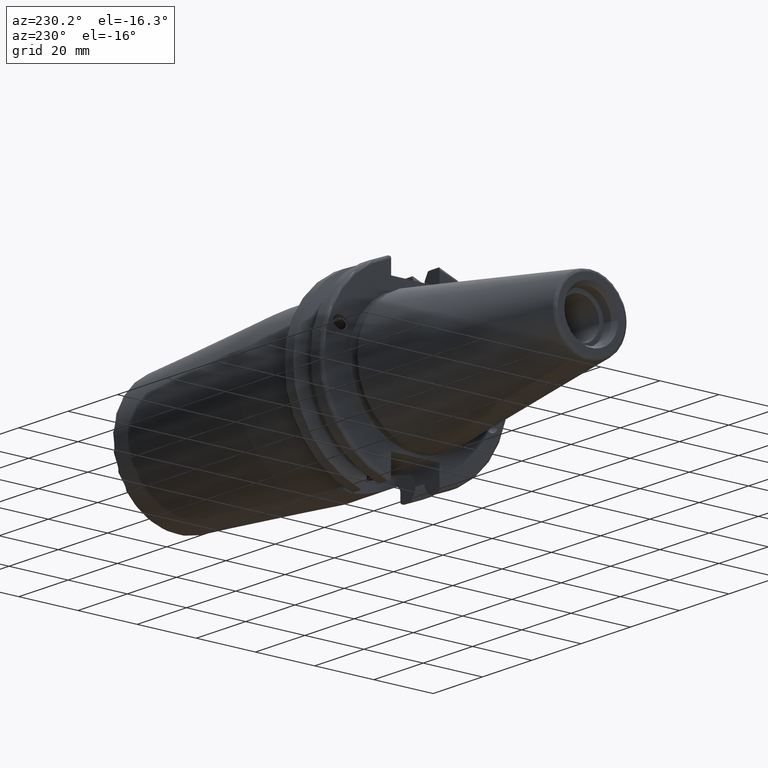
[diagram: clean part render]
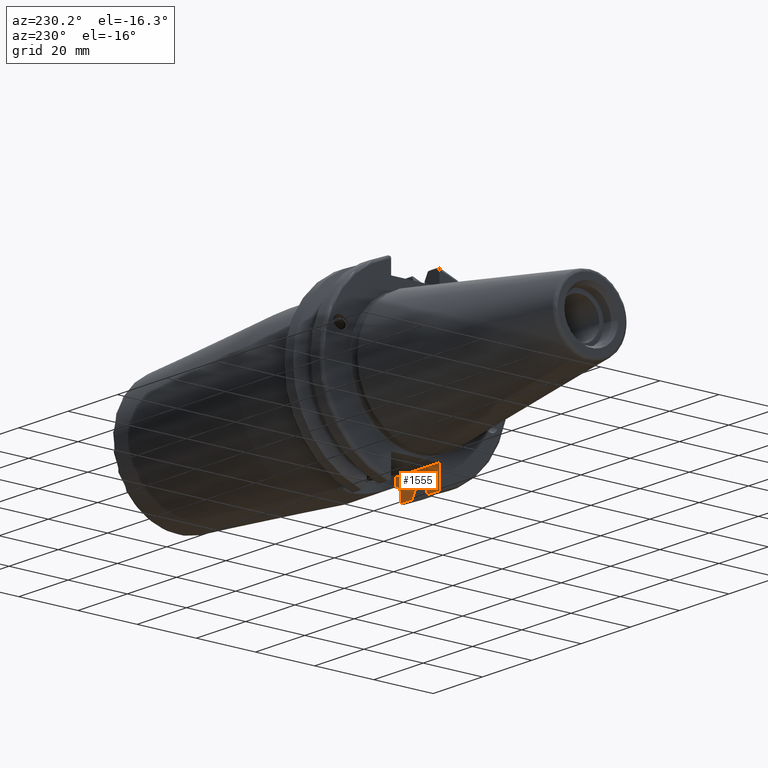
[diagram: same view with one face highlighted and labeled with its STEP entity id]
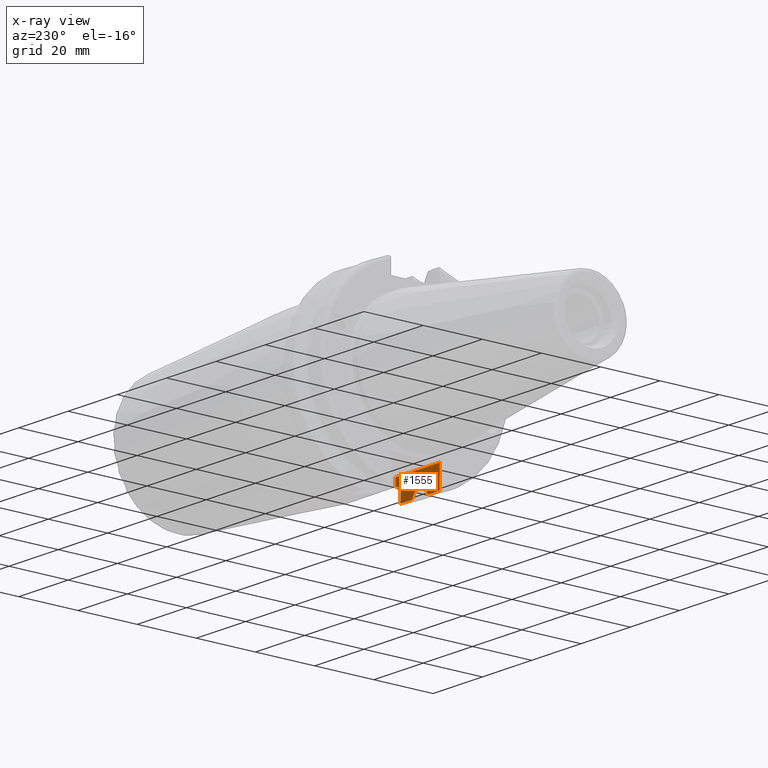
[diagram: x-ray of the same camera — body ghosted, the highlighted face saturated]
A machine part, auxiliary view. The second image highlights one B-rep face of the part: STEP entity #1555.
The next image is the same camera in x-ray: the body ghosted, the highlighted face saturated — about 0% of this face is hidden behind the body in this view.
In plain terms, the highlighted planar face has unit normal (0, -1, 0).
Its self-contained STEP definition (entity closure, byte-faithful):
#15=(
BOUNDED_CURVE()
B_SPLINE_CURVE(2,(#2634,#2635,#2636),.UNSPECIFIED.,.F.,.F.)
B_SPLINE_CURVE_WITH_KNOTS((3,3),(0.,0.276549142795512),.UNSPECIFIED.)
CURVE()
GEOMETRIC_REPRESENTATION_ITEM()
RATIONAL_B_SPLINE_CURVE((1.,1.00095203904184,1.00031614445102))
REPRESENTATION_ITEM('')
);
#26=(
BOUNDED_CURVE()
B_SPLINE_CURVE(2,(#2963,#2964,#2965),.UNSPECIFIED.,.F.,.F.)
B_SPLINE_CURVE_WITH_KNOTS((3,3),(0.0550586467392022,0.33160778953585),
 .UNSPECIFIED.)
CURVE()
GEOMETRIC_REPRESENTATION_ITEM()
RATIONAL_B_SPLINE_CURVE((1.00031614445148,1.00095203904325,1.))
REPRESENTATION_ITEM('')
);
#81=PLANE('',#1739);
#173=FACE_OUTER_BOUND('',#272,.T.);
#272=EDGE_LOOP('',(#1301,#1302,#1303,#1304,#1305,#1306,#1307,#1308,#1309,
#1310,#1311,#1312,#1313,#1314,#1315,#1316));
#388=LINE('',#2288,#474);
#390=LINE('',#2348,#476);
#401=LINE('',#2514,#487);
#413=LINE('',#2655,#499);
#414=LINE('',#2659,#500);
#415=LINE('',#2663,#501);
#435=LINE('',#2840,#521);
#449=LINE('',#2961,#535);
#450=LINE('',#2967,#536);
#451=LINE('',#2974,#537);
#474=VECTOR('',#1808,10.);
#476=VECTOR('',#1820,10.);
#487=VECTOR('',#1891,10.);
#499=VECTOR('',#1961,10.);
#500=VECTOR('',#1966,10.);
#501=VECTOR('',#1971,10.);
#521=VECTOR('',#2079,10.);
#535=VECTOR('',#2115,10.);
#536=VECTOR('',#2116,10.);
#537=VECTOR('',#2117,10.);
#563=B_SPLINE_CURVE_WITH_KNOTS('',3,(#2332,#2333,#2334,#2335,#2336,#2337,
#2338,#2339,#2340,#2341),.UNSPECIFIED.,.F.,.F.,(4,2,2,2,4),(0.30235413598056,
0.380849955756906,0.457822572712345,0.532639529571725,0.599148331142492),
 .UNSPECIFIED.);
#564=B_SPLINE_CURVE_WITH_KNOTS('',3,(#2342,#2343,#2344,#2345),
 .UNSPECIFIED.,.F.,.F.,(4,4),(0.599148331142492,0.605555811664728),
 .UNSPECIFIED.);
#588=B_SPLINE_CURVE_WITH_KNOTS('',3,(#2907,#2908,#2909,#2910,#2911,#2912),
 .UNSPECIFIED.,.F.,.F.,(4,2,4),(0.097738363091569,0.112311108149119,0.150804350305566),
 .UNSPECIFIED.);
#593=B_SPLINE_CURVE_WITH_KNOTS('',3,(#2968,#2969,#2970,#2971,#2972,#2973),
 .UNSPECIFIED.,.F.,.F.,(4,2,4),(0.452741154494498,0.491581665024872,0.505824174364157),
 .UNSPECIFIED.);
#607=VERTEX_POINT('',#2285);
#608=VERTEX_POINT('',#2287);
#613=VERTEX_POINT('',#2329);
#614=VERTEX_POINT('',#2331);
#615=VERTEX_POINT('',#2347);
#640=VERTEX_POINT('',#2512);
#663=VERTEX_POINT('',#2631);
#664=VERTEX_POINT('',#2633);
#669=VERTEX_POINT('',#2653);
#670=VERTEX_POINT('',#2657);
#671=VERTEX_POINT('',#2661);
#712=VERTEX_POINT('',#2837);
#713=VERTEX_POINT('',#2839);
#724=VERTEX_POINT('',#2906);
#733=VERTEX_POINT('',#2962);
#734=VERTEX_POINT('',#2966);
#766=EDGE_CURVE('',#607,#608,#388,.T.);
#774=EDGE_CURVE('',#614,#613,#563,.F.);
#775=EDGE_CURVE('',#607,#614,#564,.F.);
#776=EDGE_CURVE('',#615,#608,#390,.T.);
#812=EDGE_CURVE('',#640,#613,#401,.T.);
#844=EDGE_CURVE('',#663,#664,#15,.T.);
#851=EDGE_CURVE('',#669,#663,#413,.T.);
#853=EDGE_CURVE('',#670,#669,#414,.T.);
#855=EDGE_CURVE('',#671,#670,#415,.T.);
#911=EDGE_CURVE('',#712,#713,#435,.T.);
#929=EDGE_CURVE('',#724,#640,#588,.T.);
#942=EDGE_CURVE('',#664,#724,#449,.T.);
#943=EDGE_CURVE('',#733,#671,#26,.T.);
#944=EDGE_CURVE('',#734,#733,#450,.T.);
#945=EDGE_CURVE('',#713,#734,#593,.T.);
#946=EDGE_CURVE('',#615,#712,#451,.T.);
#1301=ORIENTED_EDGE('',*,*,#774,.T.);
#1302=ORIENTED_EDGE('',*,*,#812,.F.);
#1303=ORIENTED_EDGE('',*,*,#929,.F.);
#1304=ORIENTED_EDGE('',*,*,#942,.F.);
#1305=ORIENTED_EDGE('',*,*,#844,.F.);
#1306=ORIENTED_EDGE('',*,*,#851,.F.);
#1307=ORIENTED_EDGE('',*,*,#853,.F.);
#1308=ORIENTED_EDGE('',*,*,#855,.F.);
#1309=ORIENTED_EDGE('',*,*,#943,.F.);
#1310=ORIENTED_EDGE('',*,*,#944,.F.);
#1311=ORIENTED_EDGE('',*,*,#945,.F.);
#1312=ORIENTED_EDGE('',*,*,#911,.F.);
#1313=ORIENTED_EDGE('',*,*,#946,.F.);
#1314=ORIENTED_EDGE('',*,*,#776,.T.);
#1315=ORIENTED_EDGE('',*,*,#766,.F.);
#1316=ORIENTED_EDGE('',*,*,#775,.T.);
#1555=ADVANCED_FACE('',(#173),#81,.F.);
#1739=AXIS2_PLACEMENT_3D('',#2960,#2113,#2114);
#1808=DIRECTION('',(-1.,0.,0.));
#1820=DIRECTION('',(0.,0.,-1.));
#1891=DIRECTION('',(0.,0.,1.));
#1961=DIRECTION('',(0.,0.,-1.));
#1966=DIRECTION('',(1.,0.,0.));
#1971=DIRECTION('',(0.,0.,1.));
#2079=DIRECTION('',(0.,0.,-1.));
#2113=DIRECTION('center_axis',(0.,-1.,0.));
#2114=DIRECTION('ref_axis',(-1.,0.,0.));
#2115=DIRECTION('',(1.,0.,0.));
#2116=DIRECTION('',(1.,0.,0.));
#2117=DIRECTION('',(-1.,-5.61033532938035E-16,0.));
#2285=CARTESIAN_POINT('',(21.05,-8.19,-25.2026566060009));
#2287=CARTESIAN_POINT('',(20.985,-8.18999999999999,-25.2026566060009));
#2288=CARTESIAN_POINT('',(30.9360393436069,-8.19,-25.2026566060009));
#2329=CARTESIAN_POINT('',(19.05,-8.19,-27.2978735435565));
#2331=CARTESIAN_POINT('',(20.985,-8.18999999999999,-25.2037675190955));
#2332=CARTESIAN_POINT('Ctrl Pts',(19.05,-8.19,-27.2978735435565));
#2333=CARTESIAN_POINT('Ctrl Pts',(19.05,-8.19,-27.0362208109687));
#2334=CARTESIAN_POINT('Ctrl Pts',(19.1094531968333,-8.19,-26.7279176858725));
#2335=CARTESIAN_POINT('Ctrl Pts',(19.3031737487845,-8.19,-26.2472590391816));
#2336=CARTESIAN_POINT('Ctrl Pts',(19.4700477206645,-8.19,-25.9885127973065));
#2337=CARTESIAN_POINT('Ctrl Pts',(19.8224629313532,-8.19,-25.6254641098208));
#2338=CARTESIAN_POINT('Ctrl Pts',(20.0683591355164,-8.19,-25.4548877652789));
#2339=CARTESIAN_POINT('Ctrl Pts',(20.501666882114,-8.19,-25.2700465210141));
#2340=CARTESIAN_POINT('Ctrl Pts',(20.7571587980552,-8.19,-25.2115576154686));
#2341=CARTESIAN_POINT('Ctrl Pts',(20.9850000000019,-8.19,-25.2037675190955));
#2342=CARTESIAN_POINT('Ctrl Pts',(20.9850000000019,-8.19,-25.2037675190955));
#2343=CARTESIAN_POINT('Ctrl Pts',(21.0069502987467,-8.19,-25.2030170185662));
#2344=CARTESIAN_POINT('Ctrl Pts',(21.0286417315925,-8.19,-25.2026566060009));
#2345=CARTESIAN_POINT('Ctrl Pts',(21.05,-8.19,-25.2026566060009));
#2347=CARTESIAN_POINT('',(20.985,-8.18999999999999,-22.6));
#2348=CARTESIAN_POINT('',(20.985,-8.18999999999999,-22.6));
#2512=CARTESIAN_POINT('',(19.05,-8.19,-29.6392712461019));
#2514=CARTESIAN_POINT('',(19.05,-8.19,-11.3));
#2631=CARTESIAN_POINT('',(13.0491,-8.19,-27.7771386827498));
#2633=CARTESIAN_POINT('',(14.3815146964874,-8.19,-30.1755016258903));
#2634=CARTESIAN_POINT('Ctrl Pts',(13.0491,-8.19,-27.7771386827498));
#2635=CARTESIAN_POINT('Ctrl Pts',(13.68773643849,-8.19,-28.9303689539956));
#2636=CARTESIAN_POINT('Ctrl Pts',(14.3815146964874,-8.19,-30.1755016258903));
#2653=CARTESIAN_POINT('',(13.0491,-8.19,-26.932255754021));
#2655=CARTESIAN_POINT('',(13.0491,-8.19,-11.3));
#2657=CARTESIAN_POINT('',(9.2191,-8.19,-26.932255754021));
#2659=CARTESIAN_POINT('',(11.1341,-8.19,-26.932255754021));
#2661=CARTESIAN_POINT('',(9.2191,-8.19,-27.7771386827498));
#2663=CARTESIAN_POINT('',(9.2191,-8.19,-11.3));
#2837=CARTESIAN_POINT('',(3.175,-8.19,-22.6));
#2839=CARTESIAN_POINT('',(3.175,-8.19,-29.6392712461019));
#2840=CARTESIAN_POINT('',(3.175,-8.19,-11.3));
#2906=CARTESIAN_POINT('',(18.9058722749097,-8.19,-30.1755016258903));
#2907=CARTESIAN_POINT('Ctrl Pts',(18.9058722749097,-8.19,-30.1755016258903));
#2908=CARTESIAN_POINT('Ctrl Pts',(18.9324477233044,-8.19,-30.1299319366157));
#2909=CARTESIAN_POINT('Ctrl Pts',(18.9550700364447,-8.19,-30.0829389905409));
#2910=CARTESIAN_POINT('Ctrl Pts',(19.0210043632013,-8.19,-29.9188002007263));
#2911=CARTESIAN_POINT('Ctrl Pts',(19.05,-8.19,-29.76758205329));
#2912=CARTESIAN_POINT('Ctrl Pts',(19.05,-8.19,-29.6392712461019));
#2960=CARTESIAN_POINT('Origin',(20.05,-8.19,-22.6));
#2961=CARTESIAN_POINT('',(16.8551333845378,-8.19,-30.1755016258903));
#2962=CARTESIAN_POINT('',(7.88668530351256,-8.19,-30.1755016258903));
#2963=CARTESIAN_POINT('Ctrl Pts',(7.88668530351256,-8.19,-30.1755016258903));
#2964=CARTESIAN_POINT('Ctrl Pts',(8.5804635615235,-8.19,-28.9303689539712));
#2965=CARTESIAN_POINT('Ctrl Pts',(9.2191,-8.19,-27.7771386827498));
#2966=CARTESIAN_POINT('',(3.31912772509028,-8.19,-30.1755016258903));
#2967=CARTESIAN_POINT('',(5.39146661546218,-8.19,-30.1755016258903));
#2968=CARTESIAN_POINT('Ctrl Pts',(3.175,-8.19,-29.6392712461018));
#2969=CARTESIAN_POINT('Ctrl Pts',(3.175,-8.19,-29.7687396145364));
#2970=CARTESIAN_POINT('Ctrl Pts',(3.20451443291695,-8.19,-29.9212724384851));
#2971=CARTESIAN_POINT('Ctrl Pts',(3.27103565282437,-8.19,-30.0852355256475));
#2972=CARTESIAN_POINT('Ctrl Pts',(3.29318362718666,-8.19,-30.131014531546));
#2973=CARTESIAN_POINT('Ctrl Pts',(3.31912772509028,-8.19,-30.1755016258903));
#2974=CARTESIAN_POINT('',(20.985,-8.18999999999999,-22.6));